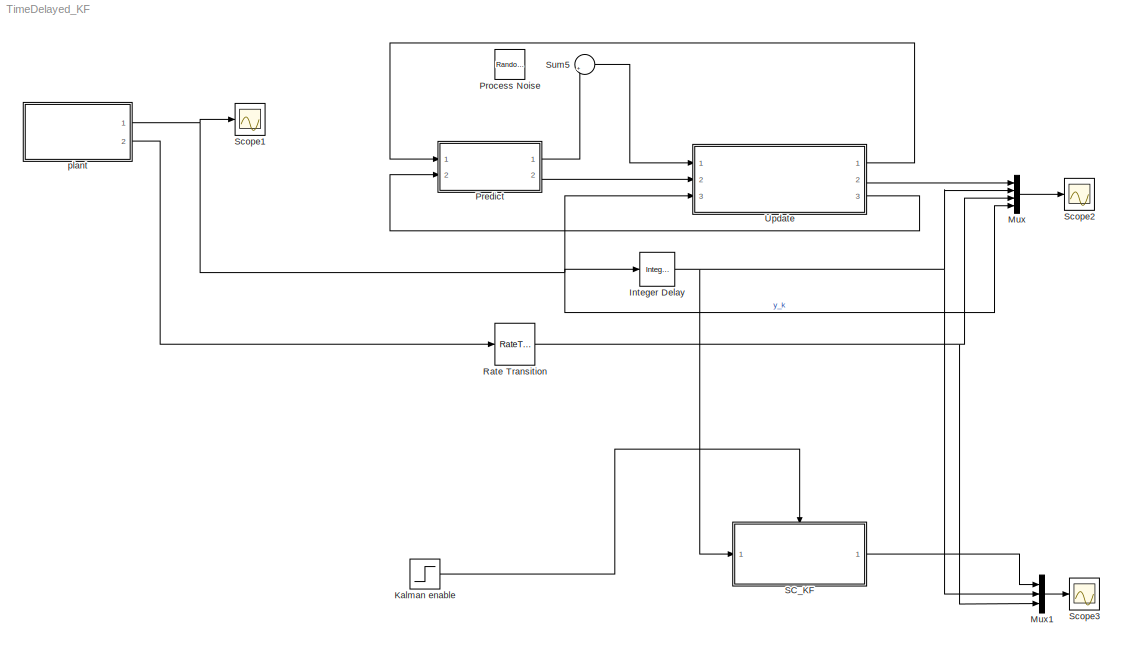
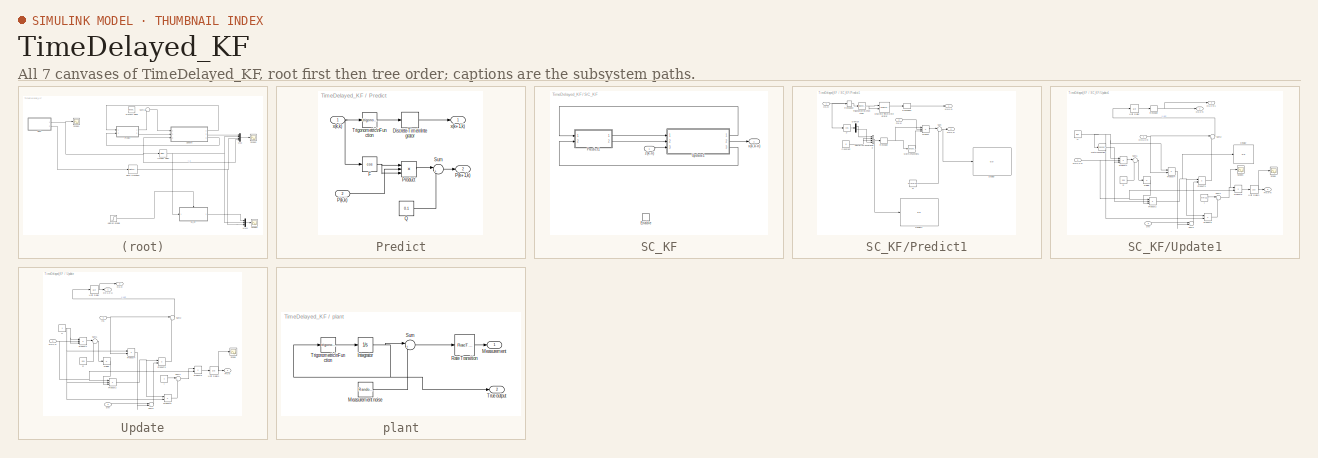
[diagram: thumbnail index - all 7 canvases of the model, root first then tree order]
MODEL TimeDelayed_KF
KIND model
BLOCK [Reference] Integer Delay  REF=simulink/Discrete/Integer Delay
  NumDelays = 5
  Ports = [1, 1]
  SourceBlock = simulink/Discrete/Integer Delay
  SourceType = Integer Delay
  samptime = 0.1
  vinit = 0.0
BLOCK [Step] Kalman enable
  SampleTime = 0
  Time = 0.5
BLOCK [Mux] Mux
  DisplayOption = bar
  Ports = [4, 1]
BLOCK [Mux] Mux1
  DisplayOption = bar
  Inputs = 3
  Ports = [3, 1]
BLOCK [SubSystem] Predict
  FunctionWithSeparateData = off
  MinAlgLoopOccurrences = off
  Ports = [2, 2]
  RTWSystemCode = Auto
BLOCK [DiscreteIntegrator] Predict/Discrete-Time\nIntegrator
  ExternalReset = none
  ICPrevOutput = DiscIntNeverNeededParam
  ICPrevScaledInput = DiscIntNeverNeededParam
  InitialCondition = 2
  InitialConditionSource = internal
  IntegratorMethod = Integration: Forward Euler
  OutDataType = sfix(16)
  OutScaling = 2^0
  Ports = [1, 1]
  SampleTime = 0.1
BLOCK [Trigonometry] Predict/F
  Operator = cos
  Ports = [1, 1]
  SampleTime = 0.1
BLOCK [Outport] Predict/P(k+1,k)
  IconDisplay = Port number
  Port = 2
BLOCK [Inport] Predict/P(k,k)
  IconDisplay = Port number
  Port = 2
BLOCK [Product] Predict/Product
  CollapseMode = All dimensions
  InputSameDT = off
  Inputs = 3
  OutDataType = sfix(16)
  OutDataTypeMode = Inherit via internal rule
  OutScaling = 2^0
  Ports = [3, 1]
  SampleTime = 0.1
  SaturateOnIntegerOverflow = off
BLOCK [Constant] Predict/Q
  OutDataType = sfix(16)
  OutScaling = 2^0
  Value = 0.1
BLOCK [Sum] Predict/Sum
  CollapseMode = All dimensions
  IconShape = round
  InputSameDT = off
  Inputs = |++
  OutDataType = sfix(16)
  OutDataTypeMode = Inherit via internal rule
  OutScaling = 2^0
  Ports = [2, 1]
  SampleTime = 0.1
  SaturateOnIntegerOverflow = off
BLOCK [Trigonometry] Predict/Trigonometric\nFunction
  Ports = [1, 1]
  SampleTime = 0.1
BLOCK [Outport] Predict/x(k+1,k)
  IconDisplay = Port number
BLOCK [Inport] Predict/x(k,k)
  IconDisplay = Port number
BLOCK [RandomNumber] Process Noise
  Variance = 0.0001
BLOCK [RateTransition] Rate Transition
  OutPortSampleTime = 0.1
BLOCK [SubSystem] SC_KF
  FunctionWithSeparateData = off
  MinAlgLoopOccurrences = off
  Ports = [1, 1, 1]
  RTWSystemCode = Auto
BLOCK [EnablePort] SC_KF/Enable
  Ports = []
BLOCK [SubSystem] SC_KF/Predict1
  FunctionWithSeparateData = off
  MinAlgLoopOccurrences = off
  Ports = [2, 2]
  RTWSystemCode = Auto
BLOCK [Constant] SC_KF/Predict1/Constant
  OutDataType = sfix(16)
  OutScaling = 2^0
  Value = 0
BLOCK [Demux] SC_KF/Predict1/Demux
  DisplayOption = bar
  Outputs = 2
  Ports = [1, 2]
BLOCK [DiscreteIntegrator] SC_KF/Predict1/Discrete-Time\nIntegrator
  ExternalReset = none
  ICPrevOutput = DiscIntNeverNeededParam
  ICPrevScaledInput = DiscIntNeverNeededParam
  InitialCondition = [1; 1]
  InitialConditionSource = external
  IntegratorMethod = Integration: Forward Euler
  OutDataType = sfix(16)
  OutScaling = 2^0
  Ports = [2, 1]
  SampleTime = 0.1
BLOCK [Display] SC_KF/Predict1/Display
  Decimation = 1
  Lockdown = off
  Ports = [1]
BLOCK [Display] SC_KF/Predict1/Display1
  Decimation = 1
  Lockdown = off
  Ports = [1]
BLOCK [Trigonometry] SC_KF/Predict1/F
  Operator = cos
  Ports = [1, 1]
  SampleTime = 0.1
BLOCK [Math] SC_KF/Predict1/Math\nFunction1
  Operator = transpose
  OutDataType = sfix(16)
  OutScaling = 2^0
  Ports = [1, 1]
BLOCK [Outport] SC_KF/Predict1/P(k+1,k)
  IconDisplay = Port number
  Port = 2
BLOCK [Inport] SC_KF/Predict1/P(k,k)
  IconDisplay = Port number
  Port = 2
BLOCK [Product] SC_KF/Predict1/Product
  CollapseMode = All dimensions
  InputSameDT = off
  Inputs = 3
  Multiplication = Matrix(*)
  OutDataType = sfix(16)
  OutDataTypeMode = Inherit via internal rule
  OutScaling = 2^0
  Ports = [3, 1]
  SampleTime = 0.1
  SaturateOnIntegerOverflow = off
BLOCK [Constant] SC_KF/Predict1/Q
  OutDataType = sfix(16)
  OutScaling = 2^0
  Value = 0.1*eye(2,2)
BLOCK [Reshape] SC_KF/Predict1/Reshape
  OutputDimensionality = Customize
  OutputDimensions = [2,2]
BLOCK [Reshape] SC_KF/Predict1/Reshape1
  OutputDimensionality = Customize
  OutputDimensions = [2,1]
BLOCK [Reshape] SC_KF/Predict1/Reshape2
  OutputDimensionality = Customize
  OutputDimensions = [2,1]
BLOCK [Sum] SC_KF/Predict1/Sum
  CollapseMode = All dimensions
  IconShape = round
  InputSameDT = off
  Inputs = |++
  OutDataType = sfix(16)
  OutDataTypeMode = Inherit via internal rule
  OutScaling = 2^0
  Ports = [2, 1]
  SampleTime = 0.1
  SaturateOnIntegerOverflow = off
BLOCK [Trigonometry] SC_KF/Predict1/Trigonometric\nFunction
  Ports = [1, 1]
  SampleTime = 0.1
BLOCK [Concatenate] SC_KF/Predict1/Vector\nConcatenate
  Mode = Vector
  NumInputs = 4
  Ports = [4, 1]
BLOCK [Outport] SC_KF/Predict1/x(k+1,k)
  IconDisplay = Port number
BLOCK [Inport] SC_KF/Predict1/x(k,k)
  IconDisplay = Port number
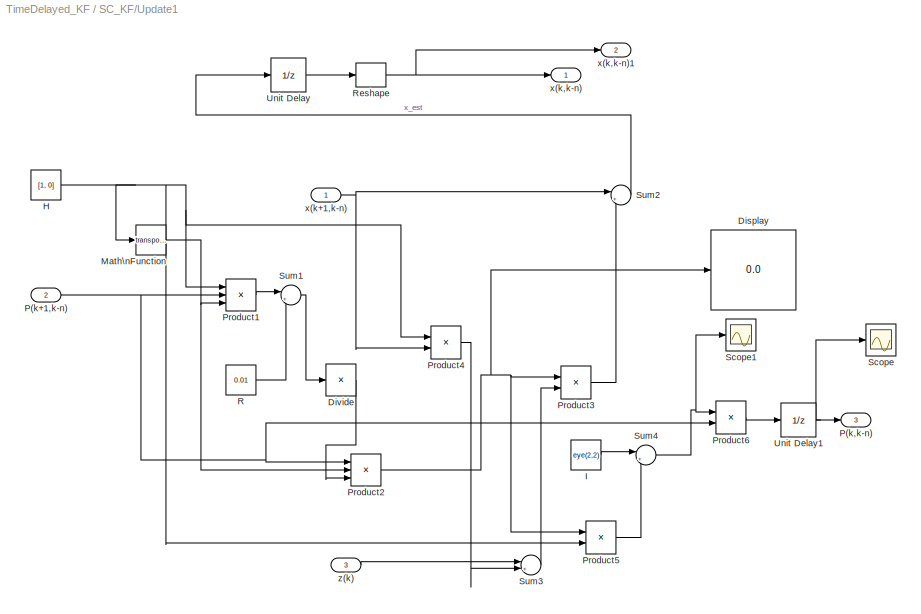
BLOCK [SubSystem] SC_KF/Update1
  FunctionWithSeparateData = off
  MinAlgLoopOccurrences = off
  Ports = [3, 3]
  RTWSystemCode = Auto
BLOCK [Display] SC_KF/Update1/Display
  Decimation = 1
  Lockdown = off
  Ports = [1]
BLOCK [Product] SC_KF/Update1/Divide
  CollapseMode = All dimensions
  InputSameDT = off
  Inputs = /
  Multiplication = Matrix(*)
  OutDataType = sfix(16)
  OutDataTypeMode = Inherit via internal rule
  OutScaling = 2^-10
  Ports = [1, 1]
  RndMeth = Floor
  SaturateOnIntegerOverflow = off
BLOCK [Constant] SC_KF/Update1/H
  OutDataType = sfix(16)
  OutScaling = 2^0
  Value = [1, 0]
  VectorParams1D = off
BLOCK [Constant] SC_KF/Update1/I
  OutDataType = sfix(16)
  OutScaling = 2^0
  Value = eye(2,2)
BLOCK [Math] SC_KF/Update1/Math\nFunction
  Operator = transpose
  OutDataType = sfix(16)
  OutScaling = 2^0
  Ports = [1, 1]
BLOCK [Inport] SC_KF/Update1/P(k+1,k-n)
  IconDisplay = Port number
  Port = 2
BLOCK [Outport] SC_KF/Update1/P(k,k-n)
  IconDisplay = Port number
  Port = 3
BLOCK [Product] SC_KF/Update1/Product1
  CollapseMode = All dimensions
  InputSameDT = off
  Inputs = 3
  Multiplication = Matrix(*)
  OutDataType = sfix(16)
  OutDataTypeMode = Inherit via internal rule
  OutScaling = 2^0
  Ports = [3, 1]
  SampleTime = 0.1
  SaturateOnIntegerOverflow = off
BLOCK [Product] SC_KF/Update1/Product2
  CollapseMode = All dimensions
  InputSameDT = off
  Inputs = 3
  Multiplication = Matrix(*)
  OutDataType = sfix(16)
  OutDataTypeMode = Inherit via internal rule
  OutScaling = 2^0
  Ports = [3, 1]
  SampleTime = 0.1
  SaturateOnIntegerOverflow = off
BLOCK [Product] SC_KF/Update1/Product3
  CollapseMode = All dimensions
  InputSameDT = off
  Multiplication = Matrix(*)
  OutDataType = sfix(16)
  OutDataTypeMode = Inherit via internal rule
  OutScaling = 2^0
  Ports = [2, 1]
  SampleTime = 0.1
  SaturateOnIntegerOverflow = off
BLOCK [Product] SC_KF/Update1/Product4
  CollapseMode = All dimensions
  InputSameDT = off
  Multiplication = Matrix(*)
  OutDataType = sfix(16)
  OutDataTypeMode = Inherit via internal rule
  OutScaling = 2^0
  Ports = [2, 1]
  SaturateOnIntegerOverflow = off
BLOCK [Product] SC_KF/Update1/Product5
  CollapseMode = All dimensions
  InputSameDT = off
  Multiplication = Matrix(*)
  OutDataType = sfix(16)
  OutDataTypeMode = Inherit via internal rule
  OutScaling = 2^0
  Ports = [2, 1]
  SaturateOnIntegerOverflow = off
BLOCK [Product] SC_KF/Update1/Product6
  CollapseMode = All dimensions
  InputSameDT = off
  Multiplication = Matrix(*)
  OutDataType = sfix(16)
  OutDataTypeMode = Inherit via internal rule
  OutScaling = 2^0
  Ports = [2, 1]
  SampleTime = 0.1
  SaturateOnIntegerOverflow = off
BLOCK [Constant] SC_KF/Update1/R
  OutDataType = sfix(16)
  OutScaling = 2^0
  Value = 0.01
BLOCK [Reshape] SC_KF/Update1/Reshape
  OutputDimensionality = Customize
  OutputDimensions = [2,1]
BLOCK [Scope] SC_KF/Update1/Scope
  DataFormat = StructureWithTime
  Floating = off
  NumInputPorts = 1
  Ports = [1]
  SampleTime = 0
  SaveName = ScopeData2
BLOCK [Scope] SC_KF/Update1/Scope1
  DataFormat = StructureWithTime
  Floating = off
  NumInputPorts = 1
  Ports = [1]
  SampleTime = 0
  SaveName = ScopeData4
BLOCK [Sum] SC_KF/Update1/Sum1
  CollapseMode = All dimensions
  IconShape = round
  InputSameDT = off
  Inputs = |++
  OutDataType = sfix(16)
  OutDataTypeMode = Inherit via internal rule
  OutScaling = 2^0
  Ports = [2, 1]
  SaturateOnIntegerOverflow = off
BLOCK [Sum] SC_KF/Update1/Sum2
  CollapseMode = All dimensions
  IconShape = round
  InputSameDT = off
  Inputs = |++
  OutDataType = sfix(16)
  OutDataTypeMode = Inherit via internal rule
  OutScaling = 2^0
  Ports = [2, 1]
  SampleTime = 0.1
  SaturateOnIntegerOverflow = off
BLOCK [Sum] SC_KF/Update1/Sum3
  CollapseMode = All dimensions
  IconShape = round
  InputSameDT = off
  Inputs = |+-
  OutDataType = sfix(16)
  OutDataTypeMode = Inherit via internal rule
  OutScaling = 2^0
  Ports = [2, 1]
  SaturateOnIntegerOverflow = off
BLOCK [Sum] SC_KF/Update1/Sum4
  CollapseMode = All dimensions
  IconShape = round
  InputSameDT = off
  Inputs = |+-
  OutDataType = sfix(16)
  OutDataTypeMode = Inherit via internal rule
  OutScaling = 2^0
  Ports = [2, 1]
  SaturateOnIntegerOverflow = off
BLOCK [UnitDelay] SC_KF/Update1/Unit Delay
  SampleTime = 0.1
  X0 = [1;1]
BLOCK [UnitDelay] SC_KF/Update1/Unit Delay1
  SampleTime = 0.1
  X0 = 2*ones(2,2)
BLOCK [Inport] SC_KF/Update1/x(k+1,k-n)
  IconDisplay = Port number
BLOCK [Outport] SC_KF/Update1/x(k,k-n)
  IconDisplay = Port number
BLOCK [Outport] SC_KF/Update1/x(k,k-n)1
  IconDisplay = Port number
  Port = 2
BLOCK [Inport] SC_KF/Update1/z(k)
  IconDisplay = Port number
  Port = 3
BLOCK [Outport] SC_KF/x(k,k-n)
  IconDisplay = Port number
BLOCK [Inport] SC_KF/z(k-n)
  IconDisplay = Port number
BLOCK [Scope] Scope1
  DataFormat = StructureWithTime
  Floating = off
  NumInputPorts = 1
  Ports = [1]
  SampleTime = 0
  SaveName = ScopeData1
  TimeRange = 10
BLOCK [Scope] Scope2
  DataFormat = StructureWithTime
  Floating = off
  NumInputPorts = 1
  Ports = [1]
  SampleTime = 0
  TimeRange = 10
BLOCK [Scope] Scope3
  DataFormat = StructureWithTime
  Floating = off
  NumInputPorts = 1
  Ports = [1]
  SampleTime = 0
  SaveName = ScopeData3
  TimeRange = 10
BLOCK [Sum] Sum5
  CollapseMode = All dimensions
  IconShape = round
  InputSameDT = off
  Inputs = |++
  OutDataType = sfix(16)
  OutDataTypeMode = Inherit via internal rule
  OutScaling = 2^0
  Ports = [2, 1]
  SampleTime = 0.1
  SaturateOnIntegerOverflow = off
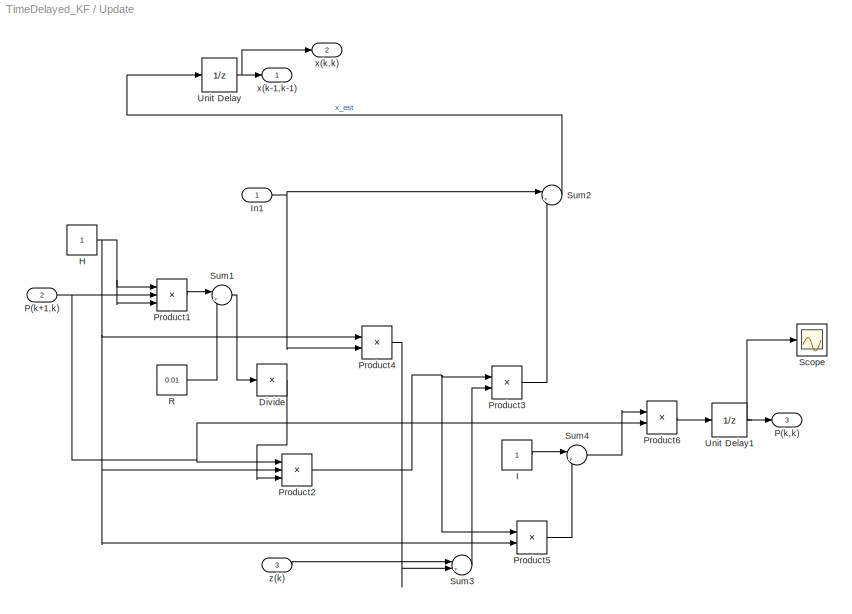
BLOCK [SubSystem] Update
  FunctionWithSeparateData = off
  MinAlgLoopOccurrences = off
  Ports = [3, 3]
  RTWSystemCode = Auto
BLOCK [Product] Update/Divide
  CollapseMode = All dimensions
  InputSameDT = off
  Inputs = /
  OutDataType = sfix(16)
  OutDataTypeMode = Inherit via internal rule
  OutScaling = 2^-10
  Ports = [1, 1]
  RndMeth = Floor
  SaturateOnIntegerOverflow = off
BLOCK [Constant] Update/H
  OutDataType = sfix(16)
  OutScaling = 2^0
BLOCK [Constant] Update/I
  OutDataType = sfix(16)
  OutScaling = 2^0
BLOCK [Inport] Update/In1
  IconDisplay = Port number
BLOCK [Inport] Update/P(k+1,k)
  IconDisplay = Port number
  Port = 2
BLOCK [Outport] Update/P(k,k)
  IconDisplay = Port number
  Port = 3
BLOCK [Product] Update/Product1
  CollapseMode = All dimensions
  InputSameDT = off
  Inputs = 3
  OutDataType = sfix(16)
  OutDataTypeMode = Inherit via internal rule
  OutScaling = 2^0
  Ports = [3, 1]
  SampleTime = 0.1
  SaturateOnIntegerOverflow = off
BLOCK [Product] Update/Product2
  CollapseMode = All dimensions
  InputSameDT = off
  Inputs = 3
  OutDataType = sfix(16)
  OutDataTypeMode = Inherit via internal rule
  OutScaling = 2^0
  Ports = [3, 1]
  SampleTime = 0.1
  SaturateOnIntegerOverflow = off
BLOCK [Product] Update/Product3
  CollapseMode = All dimensions
  InputSameDT = off
  OutDataType = sfix(16)
  OutDataTypeMode = Inherit via internal rule
  OutScaling = 2^0
  Ports = [2, 1]
  SampleTime = 0.1
  SaturateOnIntegerOverflow = off
BLOCK [Product] Update/Product4
  CollapseMode = All dimensions
  InputSameDT = off
  OutDataType = sfix(16)
  OutDataTypeMode = Inherit via internal rule
  OutScaling = 2^0
  Ports = [2, 1]
  SaturateOnIntegerOverflow = off
BLOCK [Product] Update/Product5
  CollapseMode = All dimensions
  InputSameDT = off
  OutDataType = sfix(16)
  OutDataTypeMode = Inherit via internal rule
  OutScaling = 2^0
  Ports = [2, 1]
  SaturateOnIntegerOverflow = off
BLOCK [Product] Update/Product6
  CollapseMode = All dimensions
  InputSameDT = off
  OutDataType = sfix(16)
  OutDataTypeMode = Inherit via internal rule
  OutScaling = 2^0
  Ports = [2, 1]
  SampleTime = 0.1
  SaturateOnIntegerOverflow = off
BLOCK [Constant] Update/R
  OutDataType = sfix(16)
  OutScaling = 2^0
  Value = 0.01
BLOCK [Scope] Update/Scope
  DataFormat = StructureWithTime
  Floating = off
  NumInputPorts = 1
  Ports = [1]
  SampleTime = 0
  SaveName = ScopeData2
BLOCK [Sum] Update/Sum1
  CollapseMode = All dimensions
  IconShape = round
  InputSameDT = off
  Inputs = |++
  OutDataType = sfix(16)
  OutDataTypeMode = Inherit via internal rule
  OutScaling = 2^0
  Ports = [2, 1]
  SaturateOnIntegerOverflow = off
BLOCK [Sum] Update/Sum2
  CollapseMode = All dimensions
  IconShape = round
  InputSameDT = off
  Inputs = |++
  OutDataType = sfix(16)
  OutDataTypeMode = Inherit via internal rule
  OutScaling = 2^0
  Ports = [2, 1]
  SampleTime = 0.1
  SaturateOnIntegerOverflow = off
BLOCK [Sum] Update/Sum3
  CollapseMode = All dimensions
  IconShape = round
  InputSameDT = off
  Inputs = |+-
  OutDataType = sfix(16)
  OutDataTypeMode = Inherit via internal rule
  OutScaling = 2^0
  Ports = [2, 1]
  SaturateOnIntegerOverflow = off
BLOCK [Sum] Update/Sum4
  CollapseMode = All dimensions
  IconShape = round
  InputSameDT = off
  Inputs = |+-
  OutDataType = sfix(16)
  OutDataTypeMode = Inherit via internal rule
  OutScaling = 2^0
  Ports = [2, 1]
  SaturateOnIntegerOverflow = off
BLOCK [UnitDelay] Update/Unit Delay
  SampleTime = 0.1
  X0 = 3
BLOCK [UnitDelay] Update/Unit Delay1
  SampleTime = 0.1
  X0 = 2
BLOCK [Outport] Update/x(k,k)
  IconDisplay = Port number
  Port = 2
BLOCK [Outport] Update/x(k-1,k-1)
  IconDisplay = Port number
BLOCK [Inport] Update/z(k)
  IconDisplay = Port number
  Port = 3
BLOCK [SubSystem] plant
  FunctionWithSeparateData = off
  MinAlgLoopOccurrences = off
  Ports = [0, 2]
  RTWSystemCode = Auto
BLOCK [Integrator] plant/Integrator
  InitialCondition = 0.1
  Ports = [1, 1]
BLOCK [Outport] plant/Measurement
  IconDisplay = Port number
BLOCK [RandomNumber] plant/Measurement noise
  Variance = 0.05
BLOCK [RateTransition] plant/Rate Transition
  OutPortSampleTime = 0.1
BLOCK [Sum] plant/Sum
  CollapseMode = All dimensions
  IconShape = round
  InputSameDT = off
  Inputs = |++
  OutDataType = sfix(16)
  OutDataTypeMode = Inherit via internal rule
  OutScaling = 2^0
  Ports = [2, 1]
  SaturateOnIntegerOverflow = off
BLOCK [Trigonometry] plant/Trigonometric\nFunction
  Ports = [1, 1]
BLOCK [Outport] plant/True output
  IconDisplay = Port number
  Port = 2
NET Integer Delay:1 -> Mux1:2, Mux:2, SC_KF:1
LINE Kalman enable:1 -> SC_KF:enable
LINE Mux1:1 -> Scope3:1
LINE Mux:1 -> Scope2:1
LINE Predict/Discrete-Time\nIntegrator:1 -> Predict/x(k+1,k):1
NET Predict/F:1 -> Predict/Product:1, Predict/Product:3
LINE Predict/P(k,k):1 -> Predict/Product:2
LINE Predict/Product:1 -> Predict/Sum:1
LINE Predict/Q:1 -> Predict/Sum:2
LINE Predict/Sum:1 -> Predict/P(k+1,k):1
LINE Predict/Trigonometric\nFunction:1 -> Predict/Discrete-Time\nIntegrator:1
NET Predict/x(k,k):1 -> Predict/F:1, Predict/Trigonometric\nFunction:1
LINE Predict:1 -> Sum5:2
LINE Predict:2 -> Update:2
NET Rate Transition:1 -> Mux1:3, Mux:3
NET SC_KF/Predict1/Constant:1 -> SC_KF/Predict1/Vector\nConcatenate:2, SC_KF/Predict1/Vector\nConcatenate:3
LINE SC_KF/Predict1/Demux:1 -> SC_KF/Predict1/Vector\nConcatenate:1
LINE SC_KF/Predict1/Demux:2 -> SC_KF/Predict1/Vector\nConcatenate:4
LINE SC_KF/Predict1/Discrete-Time\nIntegrator:1 -> SC_KF/Predict1/Reshape1:1
LINE SC_KF/Predict1/F:1 -> SC_KF/Predict1/Demux:1
LINE SC_KF/Predict1/Math\nFunction1:1 -> SC_KF/Predict1/Product:3
LINE SC_KF/Predict1/P(k,k):1 -> SC_KF/Predict1/Product:2
LINE SC_KF/Predict1/Product:1 -> SC_KF/Predict1/Sum:1
LINE SC_KF/Predict1/Q:1 -> SC_KF/Predict1/Sum:2
LINE SC_KF/Predict1/Reshape1:1 -> SC_KF/Predict1/x(k+1,k):1
LINE SC_KF/Predict1/Reshape2:1 -> SC_KF/Predict1/Trigonometric\nFunction:1
NET SC_KF/Predict1/Reshape:1 -> SC_KF/Predict1/Math\nFunction1:1, SC_KF/Predict1/Product:1
NET SC_KF/Predict1/Sum:1 -> SC_KF/Predict1/Display:1, SC_KF/Predict1/P(k+1,k):1
NET SC_KF/Predict1/Trigonometric\nFunction:1 -> SC_KF/Predict1/Discrete-Time\nIntegrator:1, SC_KF/Predict1/Discrete-Time\nIntegrator:2
NET SC_KF/Predict1/Vector\nConcatenate:1 -> SC_KF/Predict1/Display1:1, SC_KF/Predict1/Reshape:1
NET SC_KF/Predict1/x(k,k):1 -> SC_KF/Predict1/F:1, SC_KF/Predict1/Reshape2:1
LINE SC_KF/Predict1:1 -> SC_KF/Update1:1
LINE SC_KF/Predict1:2 -> SC_KF/Update1:2
LINE SC_KF/Update1/Divide:1 -> SC_KF/Update1/Product2:3
NET SC_KF/Update1/H:1 -> SC_KF/Update1/Math\nFunction:1, SC_KF/Update1/Product1:1, SC_KF/Update1/Product4:1, SC_KF/Update1/Product5:2
LINE SC_KF/Update1/I:1 -> SC_KF/Update1/Sum4:1
NET SC_KF/Update1/Math\nFunction:1 -> SC_KF/Update1/Product1:3, SC_KF/Update1/Product2:2
NET SC_KF/Update1/P(k+1,k-n):1 -> SC_KF/Update1/Product1:2, SC_KF/Update1/Product2:1, SC_KF/Update1/Product6:2
LINE SC_KF/Update1/Product1:1 -> SC_KF/Update1/Sum1:1
NET SC_KF/Update1/Product2:1 -> SC_KF/Update1/Display:1, SC_KF/Update1/Product3:1, SC_KF/Update1/Product5:1
LINE SC_KF/Update1/Product3:1 -> SC_KF/Update1/Sum2:2
LINE SC_KF/Update1/Product4:1 -> SC_KF/Update1/Sum3:2
LINE SC_KF/Update1/Product5:1 -> SC_KF/Update1/Sum4:2
LINE SC_KF/Update1/Product6:1 -> SC_KF/Update1/Unit Delay1:1
LINE SC_KF/Update1/R:1 -> SC_KF/Update1/Sum1:2
NET SC_KF/Update1/Reshape:1 -> SC_KF/Update1/x(k,k-n)1:1, SC_KF/Update1/x(k,k-n):1
LINE SC_KF/Update1/Sum1:1 -> SC_KF/Update1/Divide:1
LINE SC_KF/Update1/Sum2:1 -> SC_KF/Update1/Unit Delay:1
LINE SC_KF/Update1/Sum3:1 -> SC_KF/Update1/Product3:2
NET SC_KF/Update1/Sum4:1 -> SC_KF/Update1/Product6:1, SC_KF/Update1/Scope1:1
NET SC_KF/Update1/Unit Delay1:1 -> SC_KF/Update1/P(k,k-n):1, SC_KF/Update1/Scope:1
LINE SC_KF/Update1/Unit Delay:1 -> SC_KF/Update1/Reshape:1
NET SC_KF/Update1/x(k+1,k-n):1 -> SC_KF/Update1/Product4:2, SC_KF/Update1/Sum2:1
LINE SC_KF/Update1/z(k):1 -> SC_KF/Update1/Sum3:1
LINE SC_KF/Update1:1 -> SC_KF/Predict1:1
LINE SC_KF/Update1:2 -> SC_KF/x(k,k-n):1
LINE SC_KF/Update1:3 -> SC_KF/Predict1:2
LINE SC_KF/z(k-n):1 -> SC_KF/Update1:3
LINE SC_KF:1 -> Mux1:1
LINE Sum5:1 -> Update:1
LINE Update/Divide:1 -> Update/Product2:3
NET Update/H:1 -> Update/Product1:1, Update/Product1:3, Update/Product2:2, Update/Product4:1, Update/Product5:2
LINE Update/I:1 -> Update/Sum4:1
NET Update/In1:1 -> Update/Product4:2, Update/Sum2:1
NET Update/P(k+1,k):1 -> Update/Product1:2, Update/Product2:1, Update/Product6:2
LINE Update/Product1:1 -> Update/Sum1:1
NET Update/Product2:1 -> Update/Product3:1, Update/Product5:1
LINE Update/Product3:1 -> Update/Sum2:2
LINE Update/Product4:1 -> Update/Sum3:2
LINE Update/Product5:1 -> Update/Sum4:2
LINE Update/Product6:1 -> Update/Unit Delay1:1
LINE Update/R:1 -> Update/Sum1:2
LINE Update/Sum1:1 -> Update/Divide:1
LINE Update/Sum2:1 -> Update/Unit Delay:1
LINE Update/Sum3:1 -> Update/Product3:2
LINE Update/Sum4:1 -> Update/Product6:1
NET Update/Unit Delay1:1 -> Update/P(k,k):1, Update/Scope:1
NET Update/Unit Delay:1 -> Update/x(k,k):1, Update/x(k-1,k-1):1
LINE Update/z(k):1 -> Update/Sum3:1
LINE Update:1 -> Predict:1
LINE Update:2 -> Mux:1
LINE Update:3 -> Predict:2
NET plant/Integrator:1 -> plant/Sum:1, plant/Trigonometric\nFunction:1, plant/True output:1
LINE plant/Measurement noise:1 -> plant/Sum:2
LINE plant/Rate Transition:1 -> plant/Measurement:1
LINE plant/Sum:1 -> plant/Rate Transition:1
LINE plant/Trigonometric\nFunction:1 -> plant/Integrator:1
NET plant:1 -> Integer Delay:1, Mux:4, Scope1:1, Update:3
LINE plant:2 -> Rate Transition:1
note: NET lines group one-source signal fan-out (src -> all destinations, sorted); 1:1 wires keep LINE
